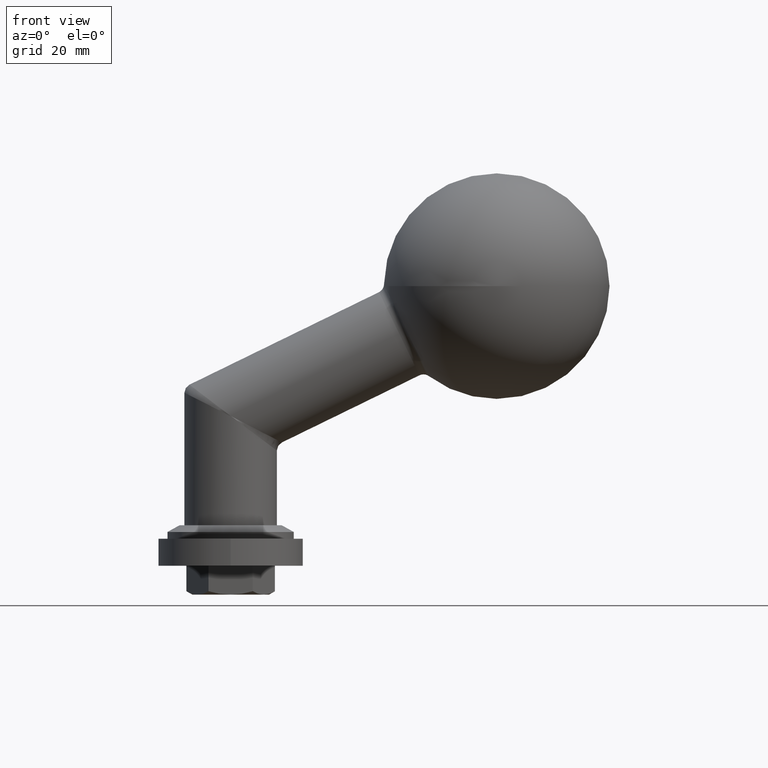
[diagram: clean part render]
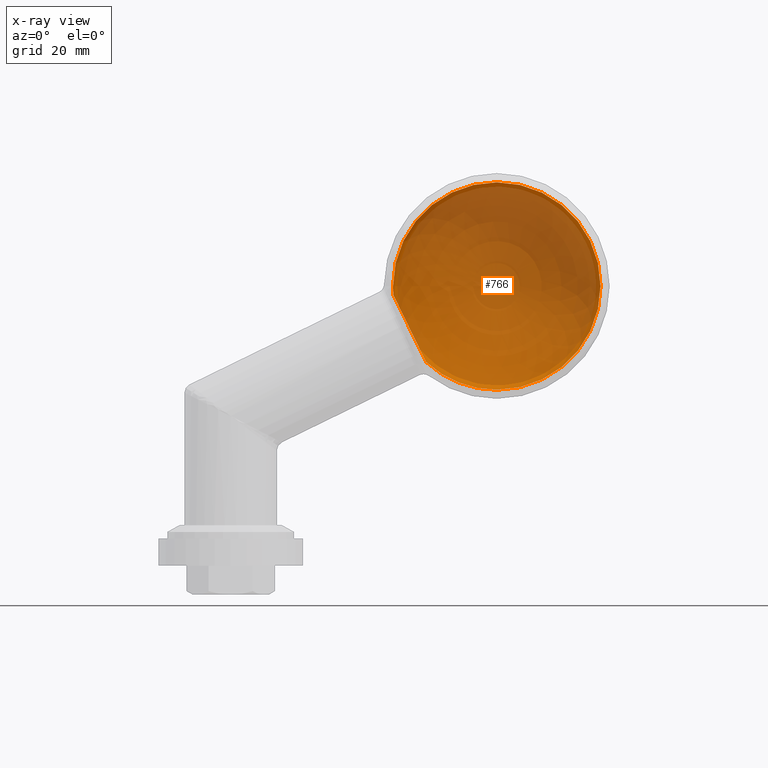
[diagram: x-ray — body ghosted, one internal face saturated and labeled with its STEP entity id]
A machine part, front view, then the same camera in x-ray: the body is ghosted and one INTERNAL B-rep face — a face not visible from any outside direction — is saturated and labeled: STEP entity #766.
In plain terms, the highlighted spherical surface has radius 23 mm.
Its self-contained STEP definition (entity closure, byte-faithful):
#28 = CARTESIAN_POINT ( 'NONE',  ( 36.08747076868645109, 1.010333609296566747E-15, 52.79600293807575895 ) ) ;
#766 = ADVANCED_FACE ( 'NONE', ( #3449 ), #2231, .F. ) ;
#1526 = DIRECTION ( 'NONE',  ( -1.000000000000000000, 0.000000000000000000, 0.000000000000000000 ) ) ;
#1890 = CARTESIAN_POINT ( 'NONE',  ( 59.00000000000000711, 0.000000000000000000, 54.79999999999999716 ) ) ;
#1997 = DIRECTION ( 'NONE',  ( -1.224646799147353207E-16, -1.000000000000000000, -0.000000000000000000 ) ) ;
#2231 = SPHERICAL_SURFACE ( 'NONE', #14296, 22.99999999999998579 ) ;
#2798 = CIRCLE ( 'NONE', #11336, 22.99999999999998579 ) ;
#3119 = CARTESIAN_POINT ( 'NONE',  ( 59.00000000000000711, 0.000000000000000000, 54.79999999999999716 ) ) ;
#3449 = FACE_OUTER_BOUND ( 'NONE', #3901, .T. ) ;
#3901 = EDGE_LOOP ( 'NONE', ( #11909, #5550, #7733, #4021 ) ) ;
#4021 = ORIENTED_EDGE ( 'NONE', *, *, #5335, .F. ) ;
#4202 = CIRCLE ( 'NONE', #7174, 22.99999999999998579 ) ;
#4311 = VERTEX_POINT ( 'NONE', #28 ) ;
#5335 = EDGE_CURVE ( 'NONE', #9634, #4311, #11471, .T. ) ;
#5550 = ORIENTED_EDGE ( 'NONE', *, *, #13129, .T. ) ;
#5670 = DIRECTION ( 'NONE',  ( 0.000000000000000000, 1.000000000000000000, 0.000000000000000000 ) ) ;
#5709 = VERTEX_POINT ( 'NONE', #16330 ) ;
#6148 = DIRECTION ( 'NONE',  ( 0.000000000000000000, 1.000000000000000000, 0.000000000000000000 ) ) ;
#6198 = CARTESIAN_POINT ( 'NONE',  ( 59.00000000000000711, 0.000000000000000000, 54.79999999999999716 ) ) ;
#7174 = AXIS2_PLACEMENT_3D ( 'NONE', #6198, #6148, #10085 ) ;
#7636 = AXIS2_PLACEMENT_3D ( 'NONE', #3119, #5670, #14809 ) ;
#7733 = ORIENTED_EDGE ( 'NONE', *, *, #15836, .F. ) ;
#7743 = DIRECTION ( 'NONE',  ( 0.4386636880773767677, 0.000000000000000000, -0.8986513054362931241 ) ) ;
#7871 = CARTESIAN_POINT ( 'NONE',  ( 59.00000000000000711, 0.000000000000000000, 77.79999999999998295 ) ) ;
#8022 = CARTESIAN_POINT ( 'NONE',  ( 59.00000000000000711, 0.000000000000000000, 54.79999999999999716 ) ) ;
#9539 = DIRECTION ( 'NONE',  ( -0.000000000000000000, -1.000000000000000000, 0.000000000000000000 ) ) ;
#9634 = VERTEX_POINT ( 'NONE', #13293 ) ;
#9901 = CIRCLE ( 'NONE', #7636, 22.99999999999998579 ) ;
#10085 = DIRECTION ( 'NONE',  ( 0.000000000000000000, 0.000000000000000000, 1.000000000000000000 ) ) ;
#10184 = DIRECTION ( 'NONE',  ( 0.8986513054362931241, -0.000000000000000000, 0.4386636880773769342 ) ) ;
#10238 = CARTESIAN_POINT ( 'NONE',  ( 39.70644619532480846, 0.000000000000000000, 45.38212966822634087 ) ) ;
#11217 = VERTEX_POINT ( 'NONE', #7871 ) ;
#11336 = AXIS2_PLACEMENT_3D ( 'NONE', #1890, #1997, #13809 ) ;
#11471 = CIRCLE ( 'NONE', #11539, 8.250000000000003553 ) ;
#11539 = AXIS2_PLACEMENT_3D ( 'NONE', #10238, #10184, #7743 ) ;
#11909 = ORIENTED_EDGE ( 'NONE', *, *, #15180, .F. ) ;
#13129 = EDGE_CURVE ( 'NONE', #5709, #11217, #2798, .T. ) ;
#13293 = CARTESIAN_POINT ( 'NONE',  ( 43.32542162196318003, 0.000000000000000000, 37.96825639837692279 ) ) ;
#13809 = DIRECTION ( 'NONE',  ( 1.000000000000000000, -1.224646799147353207E-16, 0.000000000000000000 ) ) ;
#14296 = AXIS2_PLACEMENT_3D ( 'NONE', #8022, #9539, #1526 ) ;
#14809 = DIRECTION ( 'NONE',  ( 0.000000000000000000, 0.000000000000000000, 1.000000000000000000 ) ) ;
#15180 = EDGE_CURVE ( 'NONE', #5709, #9634, #4202, .T. ) ;
#15836 = EDGE_CURVE ( 'NONE', #4311, #11217, #9901, .T. ) ;
#16330 = CARTESIAN_POINT ( 'NONE',  ( 59.00000000000000711, 0.000000000000000000, 31.80000000000000782 ) ) ;